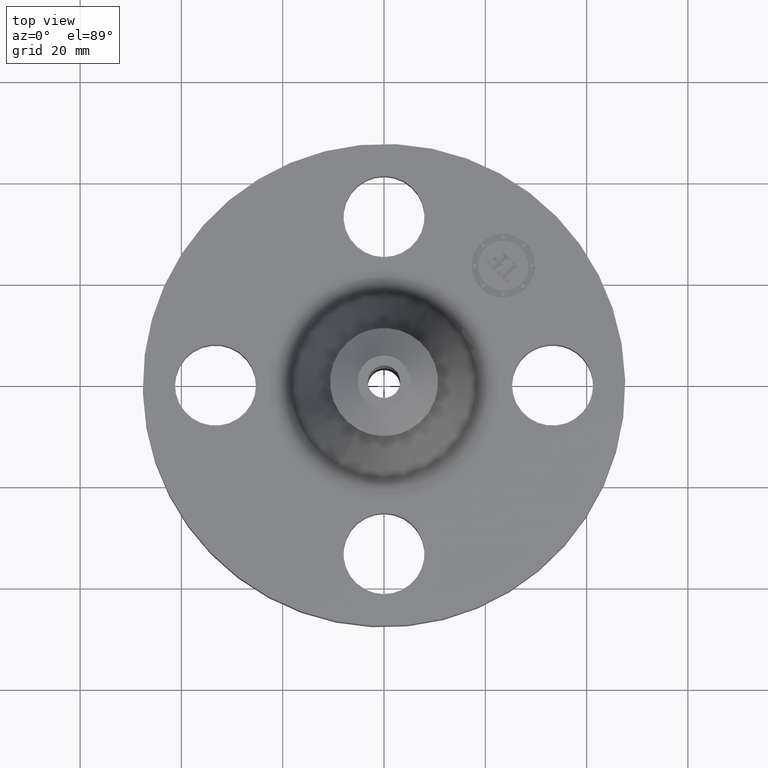
[diagram: clean part render]
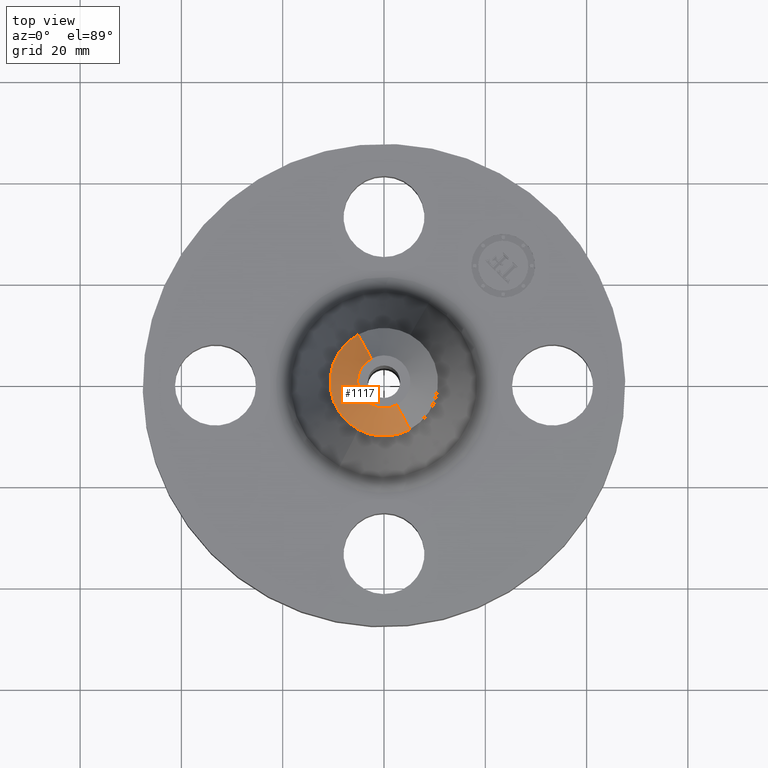
[diagram: same view with one face highlighted and labeled with its STEP entity id]
A machine part, top view. The second image highlights one B-rep face of the part: STEP entity #1117.
In plain terms, the highlighted conical surface has half-angle 52.5 deg.
Its self-contained STEP definition (entity closure, byte-faithful):
#787=AXIS2_PLACEMENT_3D('Circle Axis2P3D',#785,#786,$) ;
#1096=AXIS2_PLACEMENT_3D('Cone Axis2P3D',#1093,#1094,#1095) ;
#1100=AXIS2_PLACEMENT_3D('Circle Axis2P3D',#1098,#1099,$) ;
#1107=AXIS2_PLACEMENT_3D('Circle Axis2P3D',#1105,#1106,$) ;
#780=CARTESIAN_POINT('Vertex',(0.0981576602743,-0.179676391924,2.06000000001)) ;
#782=CARTESIAN_POINT('Vertex',(-0.0981576602743,0.179676391924,2.06000000001)) ;
#785=CARTESIAN_POINT('Axis2P3D Location',(4.36653338159E-011,5.02806894982E-012,2.06000000001)) ;
#1052=CARTESIAN_POINT('Line Origine',(-0.149758193245,0.274130533961,1.97741265671)) ;
#1056=CARTESIAN_POINT('Vertex',(-0.201358726215,0.368584675995,1.8948253134)) ;
#1059=CARTESIAN_POINT('Line Origine',(0.149758193245,-0.274130533961,1.97741265671)) ;
#1063=CARTESIAN_POINT('Vertex',(0.201358726215,-0.368584675995,1.8948253134)) ;
#1093=CARTESIAN_POINT('Axis2P3D Location',(0.,0.,2.06000000001)) ;
#1098=CARTESIAN_POINT('Axis2P3D Location',(0.,0.,1.89482531341)) ;
#1102=CARTESIAN_POINT('Vertex',(-0.201358726215,-0.368584675996,1.8948253134)) ;
#1105=CARTESIAN_POINT('Axis2P3D Location',(0.,0.,1.89482531341)) ;
#786=DIRECTION('Axis2P3D Direction',(0.,0.,-0.0393700787402)) ;
#1053=DIRECTION('Vector Direction',(-0.014974561121,0.02741075027,-0.023966985394)) ;
#1060=DIRECTION('Vector Direction',(0.014974561121,-0.02741075027,-0.023966985394)) ;
#1094=DIRECTION('Axis2P3D Direction',(-0.,-0.,-0.0393700787402)) ;
#1095=DIRECTION('Axis2P3D XDirection',(0.0188750212049,-0.0345504945626,0.)) ;
#1099=DIRECTION('Axis2P3D Direction',(-0.,0.,-0.0393700787402)) ;
#1106=DIRECTION('Axis2P3D Direction',(-0.,0.,-0.0393700787402)) ;
#1054=VECTOR('Line Direction',#1053,0.0393700787402) ;
#1061=VECTOR('Line Direction',#1060,0.0393700787402) ;
#1111=ORIENTED_EDGE('',*,*,#1065,.F.) ;
#1112=ORIENTED_EDGE('',*,*,#789,.F.) ;
#1113=ORIENTED_EDGE('',*,*,#1058,.T.) ;
#1114=ORIENTED_EDGE('',*,*,#1104,.T.) ;
#1115=ORIENTED_EDGE('',*,*,#1109,.F.) ;
#1117=ADVANCED_FACE('PartBody',(#1116),#1097,.T.) ;
#788=CIRCLE('generated circle',#787,0.204740157501) ;
#1101=CIRCLE('generated circle',#1100,0.420000000005) ;
#1108=CIRCLE('generated circle',#1107,0.420000000005) ;
#1097=CONICAL_SURFACE('Cone',#1096,0.204740157481,0.916297857297) ;
#789=EDGE_CURVE('',#783,#781,#788,.F.) ;
#1058=EDGE_CURVE('',#783,#1057,#1055,.T.) ;
#1065=EDGE_CURVE('',#781,#1064,#1062,.T.) ;
#1104=EDGE_CURVE('',#1057,#1103,#1101,.F.) ;
#1109=EDGE_CURVE('',#1064,#1103,#1108,.T.) ;
#1110=EDGE_LOOP('',(#1111,#1112,#1113,#1114,#1115)) ;
#1116=FACE_OUTER_BOUND('',#1110,.T.) ;
#1055=LINE('Line',#1052,#1054) ;
#1062=LINE('Line',#1059,#1061) ;
#781=VERTEX_POINT('',#780) ;
#783=VERTEX_POINT('',#782) ;
#1057=VERTEX_POINT('',#1056) ;
#1064=VERTEX_POINT('',#1063) ;
#1103=VERTEX_POINT('',#1102) ;